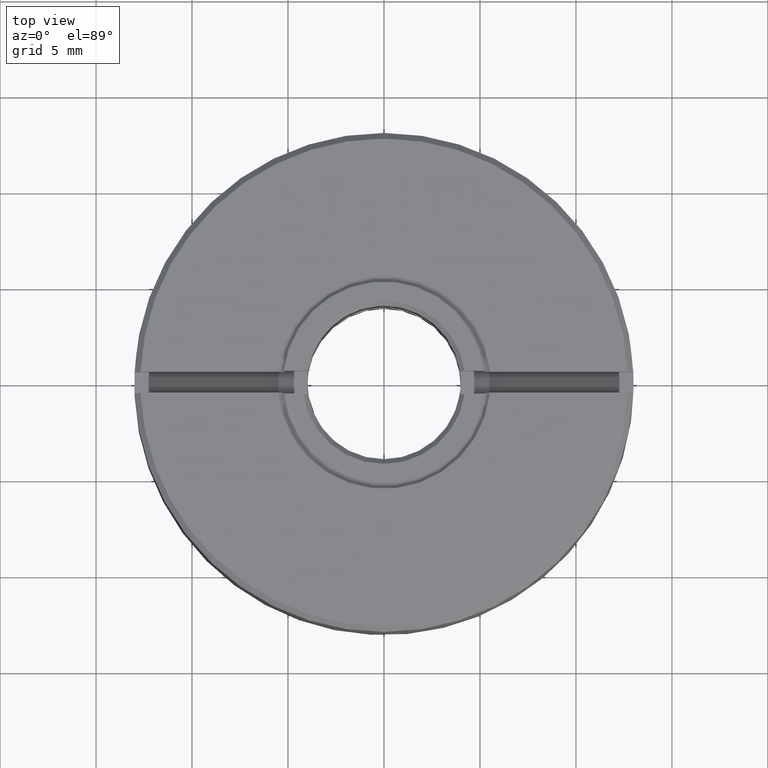
[diagram: clean part render]
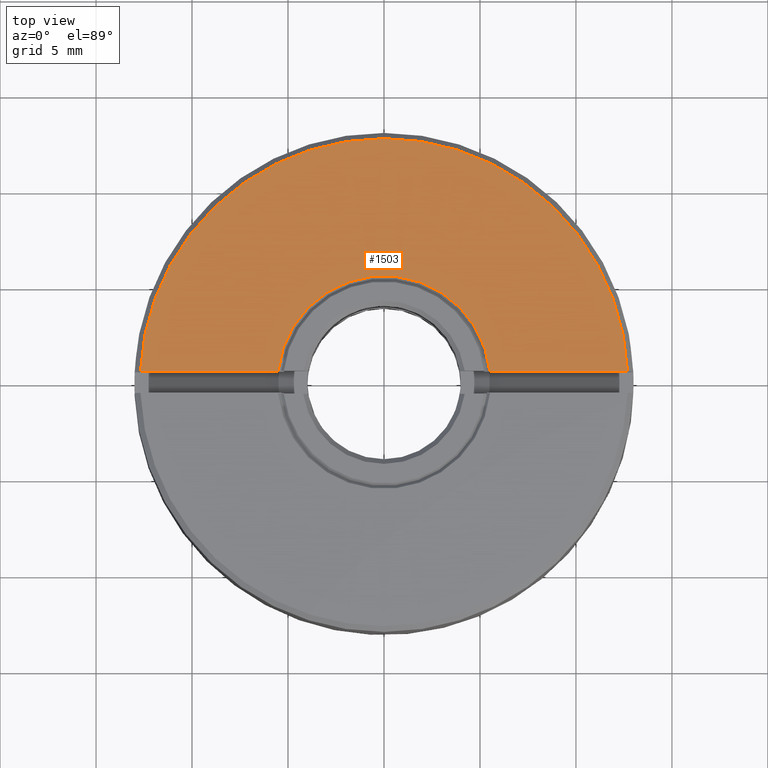
[diagram: same view with one face highlighted and labeled with its STEP entity id]
A machine part, top view. The second image highlights one B-rep face of the part: STEP entity #1503.
In plain terms, the highlighted planar face has unit normal (0, 0, 1).
Its self-contained STEP definition (entity closure, byte-faithful):
#46 = DIRECTION ( 'NONE',  ( 1.000000000000000000, 0.000000000000000000, -0.000000000000000000 ) ) ;
#49 = CARTESIAN_POINT ( 'NONE',  ( 5.522680508605577465, 0.5500000000000000444, 5.000000000036261660 ) ) ;
#73 = EDGE_CURVE ( 'NONE', #1048, #1262, #593, .T. ) ;
#115 = EDGE_CURVE ( 'NONE', #1262, #246, #537, .T. ) ;
#149 = DIRECTION ( 'NONE',  ( -0.000000000000000000, 0.000000000000000000, -1.000000000000000000 ) ) ;
#168 = PLANE ( 'NONE',  #572 ) ;
#246 = VERTEX_POINT ( 'NONE', #49 ) ;
#248 = EDGE_LOOP ( 'NONE', ( #829, #1006, #1275, #1506 ) ) ;
#257 = DIRECTION ( 'NONE',  ( 1.000000000000000000, 0.000000000000000000, -0.000000000000000000 ) ) ;
#309 = AXIS2_PLACEMENT_3D ( 'NONE', #1276, #419, #788 ) ;
#419 = DIRECTION ( 'NONE',  ( 0.000000000000000000, 0.000000000000000000, -1.000000000000000000 ) ) ;
#537 = CIRCLE ( 'NONE', #671, 5.550000000027921487 ) ;
#572 = AXIS2_PLACEMENT_3D ( 'NONE', #1402, #660, #46 ) ;
#593 = LINE ( 'NONE', #1244, #1507 ) ;
#603 = DIRECTION ( 'NONE',  ( 1.000000000000000000, 0.000000000000000000, -0.000000000000000000 ) ) ;
#660 = DIRECTION ( 'NONE',  ( 0.000000000000000000, 0.000000000000000000, 1.000000000000000000 ) ) ;
#671 = AXIS2_PLACEMENT_3D ( 'NONE', #882, #149, #1022 ) ;
#788 = DIRECTION ( 'NONE',  ( -1.000000000000000000, 0.000000000000000000, 0.000000000000000000 ) ) ;
#829 = ORIENTED_EDGE ( 'NONE', *, *, #73, .T. ) ;
#841 = LINE ( 'NONE', #1344, #1282 ) ;
#854 = EDGE_CURVE ( 'NONE', #246, #1338, #841, .T. ) ;
#882 = CARTESIAN_POINT ( 'NONE',  ( 0.000000000000000000, 0.000000000000000000, 5.000000000052295945 ) ) ;
#1006 = ORIENTED_EDGE ( 'NONE', *, *, #115, .T. ) ;
#1022 = DIRECTION ( 'NONE',  ( 1.000000000000000000, 0.000000000000000000, 0.000000000000000000 ) ) ;
#1029 = FACE_OUTER_BOUND ( 'NONE', #248, .T. ) ;
#1040 = CIRCLE ( 'NONE', #309, 12.69999999999998863 ) ;
#1048 = VERTEX_POINT ( 'NONE', #1532 ) ;
#1148 = EDGE_CURVE ( 'NONE', #1048, #1338, #1040, .T. ) ;
#1244 = CARTESIAN_POINT ( 'NONE',  ( 0.000000000000000000, 0.5500000000000000444, 5.000000000000000000 ) ) ;
#1249 = CARTESIAN_POINT ( 'NONE',  ( 12.68808496188450441, 0.5500000000000000444, 5.000000000000002665 ) ) ;
#1262 = VERTEX_POINT ( 'NONE', #1581 ) ;
#1275 = ORIENTED_EDGE ( 'NONE', *, *, #854, .T. ) ;
#1276 = CARTESIAN_POINT ( 'NONE',  ( 0.000000000000000000, 0.000000000000000000, 5.000000000000001776 ) ) ;
#1282 = VECTOR ( 'NONE', #257, 1000.000000000000000 ) ;
#1338 = VERTEX_POINT ( 'NONE', #1249 ) ;
#1344 = CARTESIAN_POINT ( 'NONE',  ( 0.000000000000000000, 0.5500000000000000444, 5.000000000000000000 ) ) ;
#1402 = CARTESIAN_POINT ( 'NONE',  ( 0.000000000000000000, 0.000000000000000000, 5.000000000000000000 ) ) ;
#1503 = ADVANCED_FACE ( 'NONE', ( #1029 ), #168, .T. ) ;
#1506 = ORIENTED_EDGE ( 'NONE', *, *, #1148, .F. ) ;
#1507 = VECTOR ( 'NONE', #603, 1000.000000000000000 ) ;
#1532 = CARTESIAN_POINT ( 'NONE',  ( -12.68808496188450619, 0.5500000000000000444, 5.000000000000000888 ) ) ;
#1581 = CARTESIAN_POINT ( 'NONE',  ( -5.522680508605578353, 0.5500000000000000444, 5.000000000036262549 ) ) ;